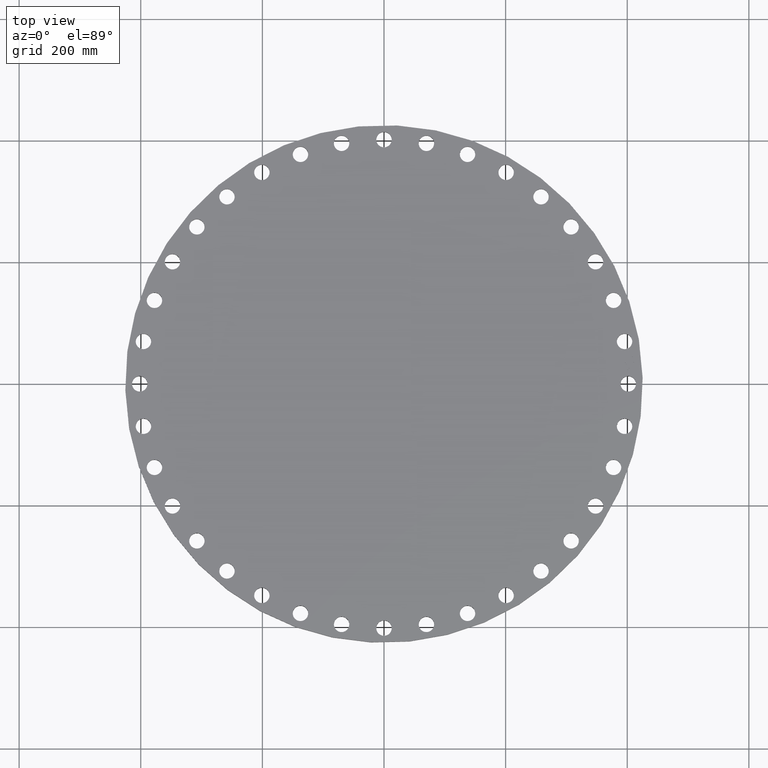
[diagram: clean part render]
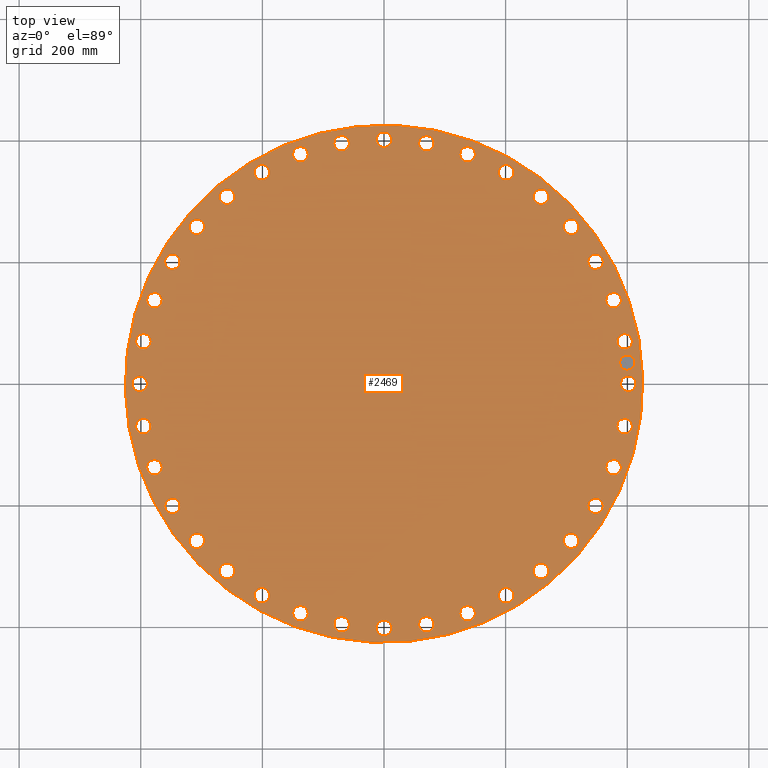
[diagram: same view with one face highlighted and labeled with its STEP entity id]
A machine part, top view. The second image highlights one B-rep face of the part: STEP entity #2469.
In plain terms, the highlighted planar face has unit normal (0, 0, -1).
Its self-contained STEP definition (entity closure, byte-faithful):
#65=AXIS2_PLACEMENT_3D('Circle Axis2P3D',#63,#64,$) ;
#82=AXIS2_PLACEMENT_3D('Circle Axis2P3D',#80,#81,$) ;
#115=AXIS2_PLACEMENT_3D('Circle Axis2P3D',#113,#114,$) ;
#139=AXIS2_PLACEMENT_3D('Circle Axis2P3D',#137,#138,$) ;
#814=AXIS2_PLACEMENT_3D('Circle Axis2P3D',#812,#813,$) ;
#826=AXIS2_PLACEMENT_3D('Circle Axis2P3D',#824,#825,$) ;
#857=AXIS2_PLACEMENT_3D('Circle Axis2P3D',#855,#856,$) ;
#869=AXIS2_PLACEMENT_3D('Circle Axis2P3D',#867,#868,$) ;
#900=AXIS2_PLACEMENT_3D('Circle Axis2P3D',#898,#899,$) ;
#912=AXIS2_PLACEMENT_3D('Circle Axis2P3D',#910,#911,$) ;
#943=AXIS2_PLACEMENT_3D('Circle Axis2P3D',#941,#942,$) ;
#955=AXIS2_PLACEMENT_3D('Circle Axis2P3D',#953,#954,$) ;
#986=AXIS2_PLACEMENT_3D('Circle Axis2P3D',#984,#985,$) ;
#998=AXIS2_PLACEMENT_3D('Circle Axis2P3D',#996,#997,$) ;
#1029=AXIS2_PLACEMENT_3D('Circle Axis2P3D',#1027,#1028,$) ;
#1041=AXIS2_PLACEMENT_3D('Circle Axis2P3D',#1039,#1040,$) ;
#1072=AXIS2_PLACEMENT_3D('Circle Axis2P3D',#1070,#1071,$) ;
#1084=AXIS2_PLACEMENT_3D('Circle Axis2P3D',#1082,#1083,$) ;
#1115=AXIS2_PLACEMENT_3D('Circle Axis2P3D',#1113,#1114,$) ;
#1127=AXIS2_PLACEMENT_3D('Circle Axis2P3D',#1125,#1126,$) ;
#1158=AXIS2_PLACEMENT_3D('Circle Axis2P3D',#1156,#1157,$) ;
#1170=AXIS2_PLACEMENT_3D('Circle Axis2P3D',#1168,#1169,$) ;
#1201=AXIS2_PLACEMENT_3D('Circle Axis2P3D',#1199,#1200,$) ;
#1213=AXIS2_PLACEMENT_3D('Circle Axis2P3D',#1211,#1212,$) ;
#1244=AXIS2_PLACEMENT_3D('Circle Axis2P3D',#1242,#1243,$) ;
#1256=AXIS2_PLACEMENT_3D('Circle Axis2P3D',#1254,#1255,$) ;
#1287=AXIS2_PLACEMENT_3D('Circle Axis2P3D',#1285,#1286,$) ;
#1299=AXIS2_PLACEMENT_3D('Circle Axis2P3D',#1297,#1298,$) ;
#1330=AXIS2_PLACEMENT_3D('Circle Axis2P3D',#1328,#1329,$) ;
#1342=AXIS2_PLACEMENT_3D('Circle Axis2P3D',#1340,#1341,$) ;
#1373=AXIS2_PLACEMENT_3D('Circle Axis2P3D',#1371,#1372,$) ;
#1385=AXIS2_PLACEMENT_3D('Circle Axis2P3D',#1383,#1384,$) ;
#1416=AXIS2_PLACEMENT_3D('Circle Axis2P3D',#1414,#1415,$) ;
#1428=AXIS2_PLACEMENT_3D('Circle Axis2P3D',#1426,#1427,$) ;
#1459=AXIS2_PLACEMENT_3D('Circle Axis2P3D',#1457,#1458,$) ;
#1471=AXIS2_PLACEMENT_3D('Circle Axis2P3D',#1469,#1470,$) ;
#1502=AXIS2_PLACEMENT_3D('Circle Axis2P3D',#1500,#1501,$) ;
#1514=AXIS2_PLACEMENT_3D('Circle Axis2P3D',#1512,#1513,$) ;
#1545=AXIS2_PLACEMENT_3D('Circle Axis2P3D',#1543,#1544,$) ;
#1557=AXIS2_PLACEMENT_3D('Circle Axis2P3D',#1555,#1556,$) ;
#1588=AXIS2_PLACEMENT_3D('Circle Axis2P3D',#1586,#1587,$) ;
#1600=AXIS2_PLACEMENT_3D('Circle Axis2P3D',#1598,#1599,$) ;
#1631=AXIS2_PLACEMENT_3D('Circle Axis2P3D',#1629,#1630,$) ;
#1643=AXIS2_PLACEMENT_3D('Circle Axis2P3D',#1641,#1642,$) ;
#1674=AXIS2_PLACEMENT_3D('Circle Axis2P3D',#1672,#1673,$) ;
#1686=AXIS2_PLACEMENT_3D('Circle Axis2P3D',#1684,#1685,$) ;
#1717=AXIS2_PLACEMENT_3D('Circle Axis2P3D',#1715,#1716,$) ;
#1729=AXIS2_PLACEMENT_3D('Circle Axis2P3D',#1727,#1728,$) ;
#1760=AXIS2_PLACEMENT_3D('Circle Axis2P3D',#1758,#1759,$) ;
#1772=AXIS2_PLACEMENT_3D('Circle Axis2P3D',#1770,#1771,$) ;
#1803=AXIS2_PLACEMENT_3D('Circle Axis2P3D',#1801,#1802,$) ;
#1815=AXIS2_PLACEMENT_3D('Circle Axis2P3D',#1813,#1814,$) ;
#1846=AXIS2_PLACEMENT_3D('Circle Axis2P3D',#1844,#1845,$) ;
#1858=AXIS2_PLACEMENT_3D('Circle Axis2P3D',#1856,#1857,$) ;
#1889=AXIS2_PLACEMENT_3D('Circle Axis2P3D',#1887,#1888,$) ;
#1901=AXIS2_PLACEMENT_3D('Circle Axis2P3D',#1899,#1900,$) ;
#1932=AXIS2_PLACEMENT_3D('Circle Axis2P3D',#1930,#1931,$) ;
#1944=AXIS2_PLACEMENT_3D('Circle Axis2P3D',#1942,#1943,$) ;
#1975=AXIS2_PLACEMENT_3D('Circle Axis2P3D',#1973,#1974,$) ;
#1987=AXIS2_PLACEMENT_3D('Circle Axis2P3D',#1985,#1986,$) ;
#2018=AXIS2_PLACEMENT_3D('Circle Axis2P3D',#2016,#2017,$) ;
#2030=AXIS2_PLACEMENT_3D('Circle Axis2P3D',#2028,#2029,$) ;
#2061=AXIS2_PLACEMENT_3D('Circle Axis2P3D',#2059,#2060,$) ;
#2073=AXIS2_PLACEMENT_3D('Circle Axis2P3D',#2071,#2072,$) ;
#2104=AXIS2_PLACEMENT_3D('Circle Axis2P3D',#2102,#2103,$) ;
#2116=AXIS2_PLACEMENT_3D('Circle Axis2P3D',#2114,#2115,$) ;
#2147=AXIS2_PLACEMENT_3D('Circle Axis2P3D',#2145,#2146,$) ;
#2159=AXIS2_PLACEMENT_3D('Circle Axis2P3D',#2157,#2158,$) ;
#2190=AXIS2_PLACEMENT_3D('Circle Axis2P3D',#2188,#2189,$) ;
#2202=AXIS2_PLACEMENT_3D('Circle Axis2P3D',#2200,#2201,$) ;
#2233=AXIS2_PLACEMENT_3D('Circle Axis2P3D',#2231,#2232,$) ;
#2245=AXIS2_PLACEMENT_3D('Circle Axis2P3D',#2243,#2244,$) ;
#2276=AXIS2_PLACEMENT_3D('Circle Axis2P3D',#2274,#2275,$) ;
#2288=AXIS2_PLACEMENT_3D('Circle Axis2P3D',#2286,#2287,$) ;
#2301=AXIS2_PLACEMENT_3D('Plane Axis2P3D',#2298,#2299,#2300) ;
#2453=AXIS2_PLACEMENT_3D('Circle Axis2P3D',#2451,#2452,$) ;
#2462=AXIS2_PLACEMENT_3D('Circle Axis2P3D',#2460,#2461,$) ;
#46=CARTESIAN_POINT('Vertex',(15.3762087191,0.239712769303,1.25000000001)) ;
#60=CARTESIAN_POINT('Vertex',(16.253791281,-0.239712769303,1.25000000001)) ;
#63=CARTESIAN_POINT('Axis2P3D Location',(15.8150000001,0.,1.25000000001)) ;
#80=CARTESIAN_POINT('Axis2P3D Location',(15.8150000001,0.,1.25000000001)) ;
#110=CARTESIAN_POINT('Vertex',(8.03037777165,14.6995079117,1.25000000001)) ;
#113=CARTESIAN_POINT('Axis2P3D Location',(0.,0.,1.25000000001)) ;
#117=CARTESIAN_POINT('Vertex',(-8.03037777165,-14.6995079117,1.25000000001)) ;
#137=CARTESIAN_POINT('Axis2P3D Location',(0.,0.,1.25000000001)) ;
#802=CARTESIAN_POINT('Vertex',(-15.1842352441,2.4339796298,1.25000000001)) ;
#809=CARTESIAN_POINT('Vertex',(-15.9652339838,3.05851222983,1.25000000001)) ;
#812=CARTESIAN_POINT('Axis2P3D Location',(-15.574734614,2.74624592981,1.25000000001)) ;
#824=CARTESIAN_POINT('Axis2P3D Location',(-15.574734614,2.74624592981,1.25000000001)) ;
#845=CARTESIAN_POINT('Vertex',(14.5308964647,-5.0337167895,1.25000000001)) ;
#852=CARTESIAN_POINT('Vertex',(15.1915811308,-5.78438034394,1.25000000001)) ;
#855=CARTESIAN_POINT('Axis2P3D Location',(14.8612387978,-5.40904856672,1.25000000001)) ;
#867=CARTESIAN_POINT('Axis2P3D Location',(14.8612387978,-5.40904856672,1.25000000001)) ;
#888=CARTESIAN_POINT('Vertex',(-14.5308964647,5.0337167895,1.25000000001)) ;
#895=CARTESIAN_POINT('Vertex',(-15.1915811308,5.78438034394,1.25000000001)) ;
#898=CARTESIAN_POINT('Axis2P3D Location',(-14.8612387978,5.40904856672,1.25000000001)) ;
#910=CARTESIAN_POINT('Axis2P3D Location',(-14.8612387978,5.40904856672,1.25000000001)) ;
#931=CARTESIAN_POINT('Vertex',(13.4360437493,-7.48050701173,1.25000000001)) ;
#938=CARTESIAN_POINT('Vertex',(13.9563397725,-8.33449298833,1.25000000001)) ;
#941=CARTESIAN_POINT('Axis2P3D Location',(13.6961917609,-7.90750000003,1.25000000001)) ;
#953=CARTESIAN_POINT('Axis2P3D Location',(13.6961917609,-7.90750000003,1.25000000001)) ;
#974=CARTESIAN_POINT('Vertex',(-13.4360437493,7.48050701173,1.25000000001)) ;
#981=CARTESIAN_POINT('Vertex',(-13.9563397725,8.33449298833,1.25000000001)) ;
#984=CARTESIAN_POINT('Axis2P3D Location',(-13.6961917609,7.90750000003,1.25000000001)) ;
#996=CARTESIAN_POINT('Axis2P3D Location',(-13.6961917609,7.90750000003,1.25000000001)) ;
#1017=CARTESIAN_POINT('Vertex',(11.9329436435,-9.70000581373,1.25000000001)) ;
#1024=CARTESIAN_POINT('Vertex',(12.2970420924,-10.6313662807,1.25000000001)) ;
#1027=CARTESIAN_POINT('Axis2P3D Location',(12.114992868,-10.1656860472,1.25000000001)) ;
#1039=CARTESIAN_POINT('Axis2P3D Location',(12.114992868,-10.1656860472,1.25000000001)) ;
#1060=CARTESIAN_POINT('Vertex',(-11.9329436435,9.70000581373,1.25000000001)) ;
#1067=CARTESIAN_POINT('Vertex',(-12.2970420924,10.6313662807,1.25000000001)) ;
#1070=CARTESIAN_POINT('Axis2P3D Location',(-12.114992868,10.1656860472,1.25000000001)) ;
#1082=CARTESIAN_POINT('Axis2P3D Location',(-12.114992868,10.1656860472,1.25000000001)) ;
#1103=CARTESIAN_POINT('Vertex',(10.0672670835,-11.6247748475,1.25000000001)) ;
#1110=CARTESIAN_POINT('Vertex',(10.264105011,-12.6052108884,1.25000000001)) ;
#1113=CARTESIAN_POINT('Axis2P3D Location',(10.1656860472,-12.114992868,1.25000000001)) ;
#1125=CARTESIAN_POINT('Axis2P3D Location',(10.1656860472,-12.114992868,1.25000000001)) ;
#1146=CARTESIAN_POINT('Vertex',(-10.0672670835,11.6247748475,1.25000000001)) ;
#1153=CARTESIAN_POINT('Vertex',(-10.264105011,12.6052108884,1.25000000001)) ;
#1156=CARTESIAN_POINT('Axis2P3D Location',(-10.1656860472,12.114992868,1.25000000001)) ;
#1168=CARTESIAN_POINT('Axis2P3D Location',(-10.1656860472,12.114992868,1.25000000001)) ;
#1189=CARTESIAN_POINT('Vertex',(7.89570170739,-13.19633098,1.25000000001)) ;
#1196=CARTESIAN_POINT('Vertex',(7.91929829268,-14.1960525418,1.25000000001)) ;
#1199=CARTESIAN_POINT('Axis2P3D Location',(7.90750000003,-13.6961917609,1.25000000001)) ;
#1211=CARTESIAN_POINT('Axis2P3D Location',(7.90750000003,-13.6961917609,1.25000000001)) ;
#1232=CARTESIAN_POINT('Vertex',(-7.89570170739,13.19633098,1.25000000001)) ;
#1239=CARTESIAN_POINT('Vertex',(-7.91929829268,14.1960525418,1.25000000001)) ;
#1242=CARTESIAN_POINT('Axis2P3D Location',(-7.90750000003,13.6961917609,1.25000000001)) ;
#1254=CARTESIAN_POINT('Axis2P3D Location',(-7.90750000003,13.6961917609,1.25000000001)) ;
#1275=CARTESIAN_POINT('Vertex',(5.48422943034,-14.3669232733,1.25000000001)) ;
#1282=CARTESIAN_POINT('Vertex',(5.33386770309,-15.3555543223,1.25000000001)) ;
#1285=CARTESIAN_POINT('Axis2P3D Location',(5.40904856672,-14.8612387978,1.25000000001)) ;
#1297=CARTESIAN_POINT('Axis2P3D Location',(5.40904856672,-14.8612387978,1.25000000001)) ;
#1318=CARTESIAN_POINT('Vertex',(-5.48422943034,14.3669232733,1.25000000001)) ;
#1325=CARTESIAN_POINT('Vertex',(-5.33386770309,15.3555543223,1.25000000001)) ;
#1328=CARTESIAN_POINT('Axis2P3D Location',(-5.40904856672,14.8612387978,1.25000000001)) ;
#1340=CARTESIAN_POINT('Axis2P3D Location',(-5.40904856672,14.8612387978,1.25000000001)) ;
#1361=CARTESIAN_POINT('Vertex',(2.90612161721,-15.100983873,1.25000000001)) ;
#1368=CARTESIAN_POINT('Vertex',(2.58637024242,-16.0484853549,1.25000000001)) ;
#1371=CARTESIAN_POINT('Axis2P3D Location',(2.74624592981,-15.574734614,1.25000000001)) ;
#1383=CARTESIAN_POINT('Axis2P3D Location',(2.74624592981,-15.574734614,1.25000000001)) ;
#1404=CARTESIAN_POINT('Vertex',(-2.90612161721,15.100983873,1.25000000001)) ;
#1411=CARTESIAN_POINT('Vertex',(-2.58637024242,16.0484853549,1.25000000001)) ;
#1414=CARTESIAN_POINT('Axis2P3D Location',(-2.74624592981,15.574734614,1.25000000001)) ;
#1426=CARTESIAN_POINT('Axis2P3D Location',(-2.74624592981,15.574734614,1.25000000001)) ;
#1447=CARTESIAN_POINT('Vertex',(0.239712769303,-15.3762087191,1.25000000001)) ;
#1454=CARTESIAN_POINT('Vertex',(-0.239712769303,-16.253791281,1.25000000001)) ;
#1457=CARTESIAN_POINT('Axis2P3D Location',(-1.26954041998E-015,-15.8150000001,1.25000000001)) ;
#1469=CARTESIAN_POINT('Axis2P3D Location',(-1.26954041998E-015,-15.8150000001,1.25000000001)) ;
#1490=CARTESIAN_POINT('Vertex',(-0.239712769303,15.3762087191,1.25000000001)) ;
#1497=CARTESIAN_POINT('Vertex',(0.239712769303,16.253791281,1.25000000001)) ;
#1500=CARTESIAN_POINT('Axis2P3D Location',(-6.67238492879E-016,15.8150000001,1.25000000001)) ;
#1512=CARTESIAN_POINT('Axis2P3D Location',(-6.67238492879E-016,15.8150000001,1.25000000001)) ;
#1533=CARTESIAN_POINT('Vertex',(-2.4339796298,-15.1842352441,1.25000000001)) ;
#1540=CARTESIAN_POINT('Vertex',(-3.05851222983,-15.9652339838,1.25000000001)) ;
#1543=CARTESIAN_POINT('Axis2P3D Location',(-2.74624592981,-15.574734614,1.25000000001)) ;
#1555=CARTESIAN_POINT('Axis2P3D Location',(-2.74624592981,-15.574734614,1.25000000001)) ;
#1576=CARTESIAN_POINT('Vertex',(2.4339796298,15.1842352441,1.25000000001)) ;
#1583=CARTESIAN_POINT('Vertex',(3.05851222983,15.9652339838,1.25000000001)) ;
#1586=CARTESIAN_POINT('Axis2P3D Location',(2.74624592981,15.574734614,1.25000000001)) ;
#1598=CARTESIAN_POINT('Axis2P3D Location',(2.74624592981,15.574734614,1.25000000001)) ;
#1619=CARTESIAN_POINT('Vertex',(-5.0337167895,-14.5308964647,1.25000000001)) ;
#1626=CARTESIAN_POINT('Vertex',(-5.78438034394,-15.1915811308,1.25000000001)) ;
#1629=CARTESIAN_POINT('Axis2P3D Location',(-5.40904856672,-14.8612387978,1.25000000001)) ;
#1641=CARTESIAN_POINT('Axis2P3D Location',(-5.40904856672,-14.8612387978,1.25000000001)) ;
#1662=CARTESIAN_POINT('Vertex',(5.0337167895,14.5308964647,1.25000000001)) ;
#1669=CARTESIAN_POINT('Vertex',(5.78438034394,15.1915811308,1.25000000001)) ;
#1672=CARTESIAN_POINT('Axis2P3D Location',(5.40904856672,14.8612387978,1.25000000001)) ;
#1684=CARTESIAN_POINT('Axis2P3D Location',(5.40904856672,14.8612387978,1.25000000001)) ;
#1705=CARTESIAN_POINT('Vertex',(-7.48050701173,-13.4360437493,1.25000000001)) ;
#1712=CARTESIAN_POINT('Vertex',(-8.33449298833,-13.9563397725,1.25000000001)) ;
#1715=CARTESIAN_POINT('Axis2P3D Location',(-7.90750000003,-13.6961917609,1.25000000001)) ;
#1727=CARTESIAN_POINT('Axis2P3D Location',(-7.90750000003,-13.6961917609,1.25000000001)) ;
#1748=CARTESIAN_POINT('Vertex',(7.48050701173,13.4360437493,1.25000000001)) ;
#1755=CARTESIAN_POINT('Vertex',(8.33449298833,13.9563397725,1.25000000001)) ;
#1758=CARTESIAN_POINT('Axis2P3D Location',(7.90750000003,13.6961917609,1.25000000001)) ;
#1770=CARTESIAN_POINT('Axis2P3D Location',(7.90750000003,13.6961917609,1.25000000001)) ;
#1791=CARTESIAN_POINT('Vertex',(-9.70000581373,-11.9329436435,1.25000000001)) ;
#1798=CARTESIAN_POINT('Vertex',(-10.6313662807,-12.2970420924,1.25000000001)) ;
#1801=CARTESIAN_POINT('Axis2P3D Location',(-10.1656860472,-12.114992868,1.25000000001)) ;
#1813=CARTESIAN_POINT('Axis2P3D Location',(-10.1656860472,-12.114992868,1.25000000001)) ;
#1834=CARTESIAN_POINT('Vertex',(9.70000581373,11.9329436435,1.25000000001)) ;
#1841=CARTESIAN_POINT('Vertex',(10.6313662807,12.2970420924,1.25000000001)) ;
#1844=CARTESIAN_POINT('Axis2P3D Location',(10.1656860472,12.114992868,1.25000000001)) ;
#1856=CARTESIAN_POINT('Axis2P3D Location',(10.1656860472,12.114992868,1.25000000001)) ;
#1877=CARTESIAN_POINT('Vertex',(-11.6247748475,-10.0672670835,1.25000000001)) ;
#1884=CARTESIAN_POINT('Vertex',(-12.6052108884,-10.264105011,1.25000000001)) ;
#1887=CARTESIAN_POINT('Axis2P3D Location',(-12.114992868,-10.1656860472,1.25000000001)) ;
#1899=CARTESIAN_POINT('Axis2P3D Location',(-12.114992868,-10.1656860472,1.25000000001)) ;
#1920=CARTESIAN_POINT('Vertex',(11.6247748475,10.0672670835,1.25000000001)) ;
#1927=CARTESIAN_POINT('Vertex',(12.6052108884,10.264105011,1.25000000001)) ;
#1930=CARTESIAN_POINT('Axis2P3D Location',(12.114992868,10.1656860472,1.25000000001)) ;
#1942=CARTESIAN_POINT('Axis2P3D Location',(12.114992868,10.1656860472,1.25000000001)) ;
#1963=CARTESIAN_POINT('Vertex',(-13.19633098,-7.89570170739,1.25000000001)) ;
#1970=CARTESIAN_POINT('Vertex',(-14.1960525418,-7.91929829268,1.25000000001)) ;
#1973=CARTESIAN_POINT('Axis2P3D Location',(-13.6961917609,-7.90750000003,1.25000000001)) ;
#1985=CARTESIAN_POINT('Axis2P3D Location',(-13.6961917609,-7.90750000003,1.25000000001)) ;
#2006=CARTESIAN_POINT('Vertex',(13.19633098,7.89570170739,1.25000000001)) ;
#2013=CARTESIAN_POINT('Vertex',(14.1960525418,7.91929829268,1.25000000001)) ;
#2016=CARTESIAN_POINT('Axis2P3D Location',(13.6961917609,7.90750000003,1.25000000001)) ;
#2028=CARTESIAN_POINT('Axis2P3D Location',(13.6961917609,7.90750000003,1.25000000001)) ;
#2049=CARTESIAN_POINT('Vertex',(-14.3669232733,-5.48422943034,1.25000000001)) ;
#2056=CARTESIAN_POINT('Vertex',(-15.3555543223,-5.33386770309,1.25000000001)) ;
#2059=CARTESIAN_POINT('Axis2P3D Location',(-14.8612387978,-5.40904856672,1.25000000001)) ;
#2071=CARTESIAN_POINT('Axis2P3D Location',(-14.8612387978,-5.40904856672,1.25000000001)) ;
#2092=CARTESIAN_POINT('Vertex',(14.3669232733,5.48422943034,1.25000000001)) ;
#2099=CARTESIAN_POINT('Vertex',(15.3555543223,5.33386770309,1.25000000001)) ;
#2102=CARTESIAN_POINT('Axis2P3D Location',(14.8612387978,5.40904856672,1.25000000001)) ;
#2114=CARTESIAN_POINT('Axis2P3D Location',(14.8612387978,5.40904856672,1.25000000001)) ;
#2135=CARTESIAN_POINT('Vertex',(-15.100983873,-2.90612161721,1.25000000001)) ;
#2142=CARTESIAN_POINT('Vertex',(-16.0484853549,-2.58637024242,1.25000000001)) ;
#2145=CARTESIAN_POINT('Axis2P3D Location',(-15.574734614,-2.74624592981,1.25000000001)) ;
#2157=CARTESIAN_POINT('Axis2P3D Location',(-15.574734614,-2.74624592981,1.25000000001)) ;
#2178=CARTESIAN_POINT('Vertex',(15.100983873,2.90612161721,1.25000000001)) ;
#2185=CARTESIAN_POINT('Vertex',(16.0484853549,2.58637024242,1.25000000001)) ;
#2188=CARTESIAN_POINT('Axis2P3D Location',(15.574734614,2.74624592981,1.25000000001)) ;
#2200=CARTESIAN_POINT('Axis2P3D Location',(15.574734614,2.74624592981,1.25000000001)) ;
#2221=CARTESIAN_POINT('Vertex',(-15.3762087191,-0.239712769303,1.25000000001)) ;
#2228=CARTESIAN_POINT('Vertex',(-16.253791281,0.239712769303,1.25000000001)) ;
#2231=CARTESIAN_POINT('Axis2P3D Location',(-15.8150000001,-1.93677891286E-015,1.25000000001)) ;
#2243=CARTESIAN_POINT('Axis2P3D Location',(-15.8150000001,-1.93677891286E-015,1.25000000001)) ;
#2264=CARTESIAN_POINT('Vertex',(15.1842352441,-2.4339796298,1.25000000001)) ;
#2271=CARTESIAN_POINT('Vertex',(15.9652339838,-3.05851222983,1.25000000001)) ;
#2274=CARTESIAN_POINT('Axis2P3D Location',(15.574734614,-2.74624592981,1.25000000001)) ;
#2286=CARTESIAN_POINT('Axis2P3D Location',(15.574734614,-2.74624592981,1.25000000001)) ;
#2298=CARTESIAN_POINT('Axis2P3D Location',(0.,16.7500000001,1.25000000001)) ;
#2451=CARTESIAN_POINT('Axis2P3D Location',(15.7548191504,1.37836807156,1.25000000001)) ;
#2455=CARTESIAN_POINT('Vertex',(15.711241279,1.87646542061,1.25000000001)) ;
#2457=CARTESIAN_POINT('Vertex',(15.7983970218,0.880270722512,1.25000000001)) ;
#2460=CARTESIAN_POINT('Axis2P3D Location',(15.7548191504,1.37836807156,1.25000000001)) ;
#64=DIRECTION('Axis2P3D Direction',(0.,-0.,-0.0393700787402)) ;
#81=DIRECTION('Axis2P3D Direction',(0.,-0.,-0.0393700787402)) ;
#114=DIRECTION('Axis2P3D Direction',(0.,0.,-0.0393700787402)) ;
#138=DIRECTION('Axis2P3D Direction',(0.,0.,-0.0393700787402)) ;
#813=DIRECTION('Axis2P3D Direction',(0.,0.,-0.0393700787402)) ;
#825=DIRECTION('Axis2P3D Direction',(0.,0.,-0.0393700787402)) ;
#856=DIRECTION('Axis2P3D Direction',(0.,-0.,-0.0393700787402)) ;
#868=DIRECTION('Axis2P3D Direction',(0.,-0.,-0.0393700787402)) ;
#899=DIRECTION('Axis2P3D Direction',(0.,0.,-0.0393700787402)) ;
#911=DIRECTION('Axis2P3D Direction',(0.,0.,-0.0393700787402)) ;
#942=DIRECTION('Axis2P3D Direction',(0.,-0.,-0.0393700787402)) ;
#954=DIRECTION('Axis2P3D Direction',(0.,-0.,-0.0393700787402)) ;
#985=DIRECTION('Axis2P3D Direction',(0.,0.,-0.0393700787402)) ;
#997=DIRECTION('Axis2P3D Direction',(0.,0.,-0.0393700787402)) ;
#1028=DIRECTION('Axis2P3D Direction',(0.,-0.,-0.0393700787402)) ;
#1040=DIRECTION('Axis2P3D Direction',(0.,-0.,-0.0393700787402)) ;
#1071=DIRECTION('Axis2P3D Direction',(0.,0.,-0.0393700787402)) ;
#1083=DIRECTION('Axis2P3D Direction',(0.,0.,-0.0393700787402)) ;
#1114=DIRECTION('Axis2P3D Direction',(0.,-0.,-0.0393700787402)) ;
#1126=DIRECTION('Axis2P3D Direction',(0.,-0.,-0.0393700787402)) ;
#1157=DIRECTION('Axis2P3D Direction',(0.,0.,-0.0393700787402)) ;
#1169=DIRECTION('Axis2P3D Direction',(0.,0.,-0.0393700787402)) ;
#1200=DIRECTION('Axis2P3D Direction',(0.,-0.,-0.0393700787402)) ;
#1212=DIRECTION('Axis2P3D Direction',(0.,-0.,-0.0393700787402)) ;
#1243=DIRECTION('Axis2P3D Direction',(0.,0.,-0.0393700787402)) ;
#1255=DIRECTION('Axis2P3D Direction',(0.,0.,-0.0393700787402)) ;
#1286=DIRECTION('Axis2P3D Direction',(0.,-0.,-0.0393700787402)) ;
#1298=DIRECTION('Axis2P3D Direction',(0.,-0.,-0.0393700787402)) ;
#1329=DIRECTION('Axis2P3D Direction',(0.,0.,-0.0393700787402)) ;
#1341=DIRECTION('Axis2P3D Direction',(0.,0.,-0.0393700787402)) ;
#1372=DIRECTION('Axis2P3D Direction',(0.,-0.,-0.0393700787402)) ;
#1384=DIRECTION('Axis2P3D Direction',(0.,-0.,-0.0393700787402)) ;
#1415=DIRECTION('Axis2P3D Direction',(0.,0.,-0.0393700787402)) ;
#1427=DIRECTION('Axis2P3D Direction',(0.,0.,-0.0393700787402)) ;
#1458=DIRECTION('Axis2P3D Direction',(0.,-0.,-0.0393700787402)) ;
#1470=DIRECTION('Axis2P3D Direction',(0.,-0.,-0.0393700787402)) ;
#1501=DIRECTION('Axis2P3D Direction',(0.,0.,-0.0393700787402)) ;
#1513=DIRECTION('Axis2P3D Direction',(0.,0.,-0.0393700787402)) ;
#1544=DIRECTION('Axis2P3D Direction',(-0.,0.,-0.0393700787402)) ;
#1556=DIRECTION('Axis2P3D Direction',(-0.,0.,-0.0393700787402)) ;
#1587=DIRECTION('Axis2P3D Direction',(0.,0.,-0.0393700787402)) ;
#1599=DIRECTION('Axis2P3D Direction',(0.,0.,-0.0393700787402)) ;
#1630=DIRECTION('Axis2P3D Direction',(-0.,0.,-0.0393700787402)) ;
#1642=DIRECTION('Axis2P3D Direction',(-0.,0.,-0.0393700787402)) ;
#1673=DIRECTION('Axis2P3D Direction',(0.,0.,-0.0393700787402)) ;
#1685=DIRECTION('Axis2P3D Direction',(0.,0.,-0.0393700787402)) ;
#1716=DIRECTION('Axis2P3D Direction',(-0.,0.,-0.0393700787402)) ;
#1728=DIRECTION('Axis2P3D Direction',(-0.,0.,-0.0393700787402)) ;
#1759=DIRECTION('Axis2P3D Direction',(0.,0.,-0.0393700787402)) ;
#1771=DIRECTION('Axis2P3D Direction',(0.,0.,-0.0393700787402)) ;
#1802=DIRECTION('Axis2P3D Direction',(-0.,0.,-0.0393700787402)) ;
#1814=DIRECTION('Axis2P3D Direction',(-0.,0.,-0.0393700787402)) ;
#1845=DIRECTION('Axis2P3D Direction',(0.,0.,-0.0393700787402)) ;
#1857=DIRECTION('Axis2P3D Direction',(0.,0.,-0.0393700787402)) ;
#1888=DIRECTION('Axis2P3D Direction',(-0.,0.,-0.0393700787402)) ;
#1900=DIRECTION('Axis2P3D Direction',(-0.,0.,-0.0393700787402)) ;
#1931=DIRECTION('Axis2P3D Direction',(0.,0.,-0.0393700787402)) ;
#1943=DIRECTION('Axis2P3D Direction',(0.,0.,-0.0393700787402)) ;
#1974=DIRECTION('Axis2P3D Direction',(-0.,0.,-0.0393700787402)) ;
#1986=DIRECTION('Axis2P3D Direction',(-0.,0.,-0.0393700787402)) ;
#2017=DIRECTION('Axis2P3D Direction',(0.,0.,-0.0393700787402)) ;
#2029=DIRECTION('Axis2P3D Direction',(0.,0.,-0.0393700787402)) ;
#2060=DIRECTION('Axis2P3D Direction',(-0.,0.,-0.0393700787402)) ;
#2072=DIRECTION('Axis2P3D Direction',(-0.,0.,-0.0393700787402)) ;
#2103=DIRECTION('Axis2P3D Direction',(0.,0.,-0.0393700787402)) ;
#2115=DIRECTION('Axis2P3D Direction',(0.,0.,-0.0393700787402)) ;
#2146=DIRECTION('Axis2P3D Direction',(-0.,0.,-0.0393700787402)) ;
#2158=DIRECTION('Axis2P3D Direction',(-0.,0.,-0.0393700787402)) ;
#2189=DIRECTION('Axis2P3D Direction',(0.,0.,-0.0393700787402)) ;
#2201=DIRECTION('Axis2P3D Direction',(0.,0.,-0.0393700787402)) ;
#2232=DIRECTION('Axis2P3D Direction',(-0.,0.,-0.0393700787402)) ;
#2244=DIRECTION('Axis2P3D Direction',(-0.,0.,-0.0393700787402)) ;
#2275=DIRECTION('Axis2P3D Direction',(0.,-0.,-0.0393700787402)) ;
#2287=DIRECTION('Axis2P3D Direction',(0.,-0.,-0.0393700787402)) ;
#2299=DIRECTION('Axis2P3D Direction',(0.,0.,-0.0393700787402)) ;
#2300=DIRECTION('Axis2P3D XDirection',(0.0393700787402,0.,0.)) ;
#2452=DIRECTION('Axis2P3D Direction',(0.,0.,-0.0393700787402)) ;
#2461=DIRECTION('Axis2P3D Direction',(0.,0.,-0.0393700787402)) ;
#2304=ORIENTED_EDGE('',*,*,#119,.F.) ;
#2305=ORIENTED_EDGE('',*,*,#141,.F.) ;
#2308=ORIENTED_EDGE('',*,*,#67,.T.) ;
#2309=ORIENTED_EDGE('',*,*,#84,.T.) ;
#2312=ORIENTED_EDGE('',*,*,#2290,.T.) ;
#2313=ORIENTED_EDGE('',*,*,#2278,.T.) ;
#2316=ORIENTED_EDGE('',*,*,#871,.T.) ;
#2317=ORIENTED_EDGE('',*,*,#859,.T.) ;
#2320=ORIENTED_EDGE('',*,*,#957,.T.) ;
#2321=ORIENTED_EDGE('',*,*,#945,.T.) ;
#2324=ORIENTED_EDGE('',*,*,#1043,.T.) ;
#2325=ORIENTED_EDGE('',*,*,#1031,.T.) ;
#2328=ORIENTED_EDGE('',*,*,#1129,.T.) ;
#2329=ORIENTED_EDGE('',*,*,#1117,.T.) ;
#2332=ORIENTED_EDGE('',*,*,#1215,.T.) ;
#2333=ORIENTED_EDGE('',*,*,#1203,.T.) ;
#2336=ORIENTED_EDGE('',*,*,#1301,.T.) ;
#2337=ORIENTED_EDGE('',*,*,#1289,.T.) ;
#2340=ORIENTED_EDGE('',*,*,#1387,.T.) ;
#2341=ORIENTED_EDGE('',*,*,#1375,.T.) ;
#2344=ORIENTED_EDGE('',*,*,#1473,.T.) ;
#2345=ORIENTED_EDGE('',*,*,#1461,.T.) ;
#2348=ORIENTED_EDGE('',*,*,#1559,.T.) ;
#2349=ORIENTED_EDGE('',*,*,#1547,.T.) ;
#2352=ORIENTED_EDGE('',*,*,#1645,.T.) ;
#2353=ORIENTED_EDGE('',*,*,#1633,.T.) ;
#2356=ORIENTED_EDGE('',*,*,#1731,.T.) ;
#2357=ORIENTED_EDGE('',*,*,#1719,.T.) ;
#2360=ORIENTED_EDGE('',*,*,#1817,.T.) ;
#2361=ORIENTED_EDGE('',*,*,#1805,.T.) ;
#2364=ORIENTED_EDGE('',*,*,#1903,.T.) ;
#2365=ORIENTED_EDGE('',*,*,#1891,.T.) ;
#2368=ORIENTED_EDGE('',*,*,#1989,.T.) ;
#2369=ORIENTED_EDGE('',*,*,#1977,.T.) ;
#2372=ORIENTED_EDGE('',*,*,#2075,.T.) ;
#2373=ORIENTED_EDGE('',*,*,#2063,.T.) ;
#2376=ORIENTED_EDGE('',*,*,#2161,.T.) ;
#2377=ORIENTED_EDGE('',*,*,#2149,.T.) ;
#2380=ORIENTED_EDGE('',*,*,#2247,.T.) ;
#2381=ORIENTED_EDGE('',*,*,#2235,.T.) ;
#2384=ORIENTED_EDGE('',*,*,#828,.T.) ;
#2385=ORIENTED_EDGE('',*,*,#816,.T.) ;
#2388=ORIENTED_EDGE('',*,*,#914,.T.) ;
#2389=ORIENTED_EDGE('',*,*,#902,.T.) ;
#2392=ORIENTED_EDGE('',*,*,#1000,.T.) ;
#2393=ORIENTED_EDGE('',*,*,#988,.T.) ;
#2396=ORIENTED_EDGE('',*,*,#1086,.T.) ;
#2397=ORIENTED_EDGE('',*,*,#1074,.T.) ;
#2400=ORIENTED_EDGE('',*,*,#1172,.T.) ;
#2401=ORIENTED_EDGE('',*,*,#1160,.T.) ;
#2404=ORIENTED_EDGE('',*,*,#1258,.T.) ;
#2405=ORIENTED_EDGE('',*,*,#1246,.T.) ;
#2408=ORIENTED_EDGE('',*,*,#1344,.T.) ;
#2409=ORIENTED_EDGE('',*,*,#1332,.T.) ;
#2412=ORIENTED_EDGE('',*,*,#1430,.T.) ;
#2413=ORIENTED_EDGE('',*,*,#1418,.T.) ;
#2416=ORIENTED_EDGE('',*,*,#1516,.T.) ;
#2417=ORIENTED_EDGE('',*,*,#1504,.T.) ;
#2420=ORIENTED_EDGE('',*,*,#1602,.T.) ;
#2421=ORIENTED_EDGE('',*,*,#1590,.T.) ;
#2424=ORIENTED_EDGE('',*,*,#1688,.T.) ;
#2425=ORIENTED_EDGE('',*,*,#1676,.T.) ;
#2428=ORIENTED_EDGE('',*,*,#1774,.T.) ;
#2429=ORIENTED_EDGE('',*,*,#1762,.T.) ;
#2432=ORIENTED_EDGE('',*,*,#1860,.T.) ;
#2433=ORIENTED_EDGE('',*,*,#1848,.T.) ;
#2436=ORIENTED_EDGE('',*,*,#1946,.T.) ;
#2437=ORIENTED_EDGE('',*,*,#1934,.T.) ;
#2440=ORIENTED_EDGE('',*,*,#2032,.T.) ;
#2441=ORIENTED_EDGE('',*,*,#2020,.T.) ;
#2444=ORIENTED_EDGE('',*,*,#2118,.T.) ;
#2445=ORIENTED_EDGE('',*,*,#2106,.T.) ;
#2448=ORIENTED_EDGE('',*,*,#2204,.T.) ;
#2449=ORIENTED_EDGE('',*,*,#2192,.T.) ;
#2466=ORIENTED_EDGE('',*,*,#2459,.T.) ;
#2467=ORIENTED_EDGE('',*,*,#2464,.T.) ;
#2310=FACE_BOUND('',#2307,.T.) ;
#2314=FACE_BOUND('',#2311,.T.) ;
#2318=FACE_BOUND('',#2315,.T.) ;
#2322=FACE_BOUND('',#2319,.T.) ;
#2326=FACE_BOUND('',#2323,.T.) ;
#2330=FACE_BOUND('',#2327,.T.) ;
#2334=FACE_BOUND('',#2331,.T.) ;
#2338=FACE_BOUND('',#2335,.T.) ;
#2342=FACE_BOUND('',#2339,.T.) ;
#2346=FACE_BOUND('',#2343,.T.) ;
#2350=FACE_BOUND('',#2347,.T.) ;
#2354=FACE_BOUND('',#2351,.T.) ;
#2358=FACE_BOUND('',#2355,.T.) ;
#2362=FACE_BOUND('',#2359,.T.) ;
#2366=FACE_BOUND('',#2363,.T.) ;
#2370=FACE_BOUND('',#2367,.T.) ;
#2374=FACE_BOUND('',#2371,.T.) ;
#2378=FACE_BOUND('',#2375,.T.) ;
#2382=FACE_BOUND('',#2379,.T.) ;
#2386=FACE_BOUND('',#2383,.T.) ;
#2390=FACE_BOUND('',#2387,.T.) ;
#2394=FACE_BOUND('',#2391,.T.) ;
#2398=FACE_BOUND('',#2395,.T.) ;
#2402=FACE_BOUND('',#2399,.T.) ;
#2406=FACE_BOUND('',#2403,.T.) ;
#2410=FACE_BOUND('',#2407,.T.) ;
#2414=FACE_BOUND('',#2411,.T.) ;
#2418=FACE_BOUND('',#2415,.T.) ;
#2422=FACE_BOUND('',#2419,.T.) ;
#2426=FACE_BOUND('',#2423,.T.) ;
#2430=FACE_BOUND('',#2427,.T.) ;
#2434=FACE_BOUND('',#2431,.T.) ;
#2438=FACE_BOUND('',#2435,.T.) ;
#2442=FACE_BOUND('',#2439,.T.) ;
#2446=FACE_BOUND('',#2443,.T.) ;
#2450=FACE_BOUND('',#2447,.T.) ;
#2468=FACE_BOUND('',#2465,.T.) ;
#2469=ADVANCED_FACE('PartBody',(#2306,#2310,#2314,#2318,#2322,#2326,#2330,#2334,#2338,#2342,#2346,#2350,#2354,#2358,#2362,#2366,#2370,#2374,#2378,#2382,#2386,#2390,#2394,#2398,#2402,#2406,#2410,#2414,#2418,#2422,#2426,#2430,#2434,#2438,#2442,#2446,#2450,#2468),#2302,.F.) ;
#66=CIRCLE('generated circle',#65,0.500000000002) ;
#83=CIRCLE('generated circle',#82,0.500000000002) ;
#116=CIRCLE('generated circle',#115,16.7500000001) ;
#140=CIRCLE('generated circle',#139,16.7500000001) ;
#815=CIRCLE('generated circle',#814,0.500000000002) ;
#827=CIRCLE('generated circle',#826,0.500000000002) ;
#858=CIRCLE('generated circle',#857,0.500000000002) ;
#870=CIRCLE('generated circle',#869,0.500000000002) ;
#901=CIRCLE('generated circle',#900,0.500000000002) ;
#913=CIRCLE('generated circle',#912,0.500000000002) ;
#944=CIRCLE('generated circle',#943,0.500000000002) ;
#956=CIRCLE('generated circle',#955,0.500000000002) ;
#987=CIRCLE('generated circle',#986,0.500000000002) ;
#999=CIRCLE('generated circle',#998,0.500000000002) ;
#1030=CIRCLE('generated circle',#1029,0.500000000002) ;
#1042=CIRCLE('generated circle',#1041,0.500000000002) ;
#1073=CIRCLE('generated circle',#1072,0.500000000002) ;
#1085=CIRCLE('generated circle',#1084,0.500000000002) ;
#1116=CIRCLE('generated circle',#1115,0.500000000002) ;
#1128=CIRCLE('generated circle',#1127,0.500000000002) ;
#1159=CIRCLE('generated circle',#1158,0.500000000002) ;
#1171=CIRCLE('generated circle',#1170,0.500000000002) ;
#1202=CIRCLE('generated circle',#1201,0.500000000002) ;
#1214=CIRCLE('generated circle',#1213,0.500000000002) ;
#1245=CIRCLE('generated circle',#1244,0.500000000002) ;
#1257=CIRCLE('generated circle',#1256,0.500000000002) ;
#1288=CIRCLE('generated circle',#1287,0.500000000002) ;
#1300=CIRCLE('generated circle',#1299,0.500000000002) ;
#1331=CIRCLE('generated circle',#1330,0.500000000002) ;
#1343=CIRCLE('generated circle',#1342,0.500000000002) ;
#1374=CIRCLE('generated circle',#1373,0.500000000002) ;
#1386=CIRCLE('generated circle',#1385,0.500000000002) ;
#1417=CIRCLE('generated circle',#1416,0.500000000002) ;
#1429=CIRCLE('generated circle',#1428,0.500000000002) ;
#1460=CIRCLE('generated circle',#1459,0.500000000002) ;
#1472=CIRCLE('generated circle',#1471,0.500000000002) ;
#1503=CIRCLE('generated circle',#1502,0.500000000002) ;
#1515=CIRCLE('generated circle',#1514,0.500000000002) ;
#1546=CIRCLE('generated circle',#1545,0.500000000002) ;
#1558=CIRCLE('generated circle',#1557,0.500000000002) ;
#1589=CIRCLE('generated circle',#1588,0.500000000002) ;
#1601=CIRCLE('generated circle',#1600,0.500000000002) ;
#1632=CIRCLE('generated circle',#1631,0.500000000002) ;
#1644=CIRCLE('generated circle',#1643,0.500000000002) ;
#1675=CIRCLE('generated circle',#1674,0.500000000002) ;
#1687=CIRCLE('generated circle',#1686,0.500000000002) ;
#1718=CIRCLE('generated circle',#1717,0.500000000002) ;
#1730=CIRCLE('generated circle',#1729,0.500000000002) ;
#1761=CIRCLE('generated circle',#1760,0.500000000002) ;
#1773=CIRCLE('generated circle',#1772,0.500000000002) ;
#1804=CIRCLE('generated circle',#1803,0.500000000002) ;
#1816=CIRCLE('generated circle',#1815,0.500000000002) ;
#1847=CIRCLE('generated circle',#1846,0.500000000002) ;
#1859=CIRCLE('generated circle',#1858,0.500000000002) ;
#1890=CIRCLE('generated circle',#1889,0.500000000002) ;
#1902=CIRCLE('generated circle',#1901,0.500000000002) ;
#1933=CIRCLE('generated circle',#1932,0.500000000002) ;
#1945=CIRCLE('generated circle',#1944,0.500000000002) ;
#1976=CIRCLE('generated circle',#1975,0.500000000002) ;
#1988=CIRCLE('generated circle',#1987,0.500000000002) ;
#2019=CIRCLE('generated circle',#2018,0.500000000002) ;
#2031=CIRCLE('generated circle',#2030,0.500000000002) ;
#2062=CIRCLE('generated circle',#2061,0.500000000002) ;
#2074=CIRCLE('generated circle',#2073,0.500000000002) ;
#2105=CIRCLE('generated circle',#2104,0.500000000002) ;
#2117=CIRCLE('generated circle',#2116,0.500000000002) ;
#2148=CIRCLE('generated circle',#2147,0.500000000002) ;
#2160=CIRCLE('generated circle',#2159,0.500000000002) ;
#2191=CIRCLE('generated circle',#2190,0.500000000002) ;
#2203=CIRCLE('generated circle',#2202,0.500000000002) ;
#2234=CIRCLE('generated circle',#2233,0.500000000002) ;
#2246=CIRCLE('generated circle',#2245,0.500000000002) ;
#2277=CIRCLE('generated circle',#2276,0.500000000002) ;
#2289=CIRCLE('generated circle',#2288,0.500000000002) ;
#2454=CIRCLE('generated circle',#2453,0.500000000002) ;
#2463=CIRCLE('generated circle',#2462,0.500000000002) ;
#67=EDGE_CURVE('',#47,#61,#66,.T.) ;
#84=EDGE_CURVE('',#61,#47,#83,.T.) ;
#119=EDGE_CURVE('',#111,#118,#116,.T.) ;
#141=EDGE_CURVE('',#118,#111,#140,.T.) ;
#816=EDGE_CURVE('',#803,#810,#815,.T.) ;
#828=EDGE_CURVE('',#810,#803,#827,.T.) ;
#859=EDGE_CURVE('',#846,#853,#858,.T.) ;
#871=EDGE_CURVE('',#853,#846,#870,.T.) ;
#902=EDGE_CURVE('',#889,#896,#901,.T.) ;
#914=EDGE_CURVE('',#896,#889,#913,.T.) ;
#945=EDGE_CURVE('',#932,#939,#944,.T.) ;
#957=EDGE_CURVE('',#939,#932,#956,.T.) ;
#988=EDGE_CURVE('',#975,#982,#987,.T.) ;
#1000=EDGE_CURVE('',#982,#975,#999,.T.) ;
#1031=EDGE_CURVE('',#1018,#1025,#1030,.T.) ;
#1043=EDGE_CURVE('',#1025,#1018,#1042,.T.) ;
#1074=EDGE_CURVE('',#1061,#1068,#1073,.T.) ;
#1086=EDGE_CURVE('',#1068,#1061,#1085,.T.) ;
#1117=EDGE_CURVE('',#1104,#1111,#1116,.T.) ;
#1129=EDGE_CURVE('',#1111,#1104,#1128,.T.) ;
#1160=EDGE_CURVE('',#1147,#1154,#1159,.T.) ;
#1172=EDGE_CURVE('',#1154,#1147,#1171,.T.) ;
#1203=EDGE_CURVE('',#1190,#1197,#1202,.T.) ;
#1215=EDGE_CURVE('',#1197,#1190,#1214,.T.) ;
#1246=EDGE_CURVE('',#1233,#1240,#1245,.T.) ;
#1258=EDGE_CURVE('',#1240,#1233,#1257,.T.) ;
#1289=EDGE_CURVE('',#1276,#1283,#1288,.T.) ;
#1301=EDGE_CURVE('',#1283,#1276,#1300,.T.) ;
#1332=EDGE_CURVE('',#1319,#1326,#1331,.T.) ;
#1344=EDGE_CURVE('',#1326,#1319,#1343,.T.) ;
#1375=EDGE_CURVE('',#1362,#1369,#1374,.T.) ;
#1387=EDGE_CURVE('',#1369,#1362,#1386,.T.) ;
#1418=EDGE_CURVE('',#1405,#1412,#1417,.T.) ;
#1430=EDGE_CURVE('',#1412,#1405,#1429,.T.) ;
#1461=EDGE_CURVE('',#1448,#1455,#1460,.T.) ;
#1473=EDGE_CURVE('',#1455,#1448,#1472,.T.) ;
#1504=EDGE_CURVE('',#1491,#1498,#1503,.T.) ;
#1516=EDGE_CURVE('',#1498,#1491,#1515,.T.) ;
#1547=EDGE_CURVE('',#1534,#1541,#1546,.T.) ;
#1559=EDGE_CURVE('',#1541,#1534,#1558,.T.) ;
#1590=EDGE_CURVE('',#1577,#1584,#1589,.T.) ;
#1602=EDGE_CURVE('',#1584,#1577,#1601,.T.) ;
#1633=EDGE_CURVE('',#1620,#1627,#1632,.T.) ;
#1645=EDGE_CURVE('',#1627,#1620,#1644,.T.) ;
#1676=EDGE_CURVE('',#1663,#1670,#1675,.T.) ;
#1688=EDGE_CURVE('',#1670,#1663,#1687,.T.) ;
#1719=EDGE_CURVE('',#1706,#1713,#1718,.T.) ;
#1731=EDGE_CURVE('',#1713,#1706,#1730,.T.) ;
#1762=EDGE_CURVE('',#1749,#1756,#1761,.T.) ;
#1774=EDGE_CURVE('',#1756,#1749,#1773,.T.) ;
#1805=EDGE_CURVE('',#1792,#1799,#1804,.T.) ;
#1817=EDGE_CURVE('',#1799,#1792,#1816,.T.) ;
#1848=EDGE_CURVE('',#1835,#1842,#1847,.T.) ;
#1860=EDGE_CURVE('',#1842,#1835,#1859,.T.) ;
#1891=EDGE_CURVE('',#1878,#1885,#1890,.T.) ;
#1903=EDGE_CURVE('',#1885,#1878,#1902,.T.) ;
#1934=EDGE_CURVE('',#1921,#1928,#1933,.T.) ;
#1946=EDGE_CURVE('',#1928,#1921,#1945,.T.) ;
#1977=EDGE_CURVE('',#1964,#1971,#1976,.T.) ;
#1989=EDGE_CURVE('',#1971,#1964,#1988,.T.) ;
#2020=EDGE_CURVE('',#2007,#2014,#2019,.T.) ;
#2032=EDGE_CURVE('',#2014,#2007,#2031,.T.) ;
#2063=EDGE_CURVE('',#2050,#2057,#2062,.T.) ;
#2075=EDGE_CURVE('',#2057,#2050,#2074,.T.) ;
#2106=EDGE_CURVE('',#2093,#2100,#2105,.T.) ;
#2118=EDGE_CURVE('',#2100,#2093,#2117,.T.) ;
#2149=EDGE_CURVE('',#2136,#2143,#2148,.T.) ;
#2161=EDGE_CURVE('',#2143,#2136,#2160,.T.) ;
#2192=EDGE_CURVE('',#2179,#2186,#2191,.T.) ;
#2204=EDGE_CURVE('',#2186,#2179,#2203,.T.) ;
#2235=EDGE_CURVE('',#2222,#2229,#2234,.T.) ;
#2247=EDGE_CURVE('',#2229,#2222,#2246,.T.) ;
#2278=EDGE_CURVE('',#2265,#2272,#2277,.T.) ;
#2290=EDGE_CURVE('',#2272,#2265,#2289,.T.) ;
#2459=EDGE_CURVE('',#2456,#2458,#2454,.T.) ;
#2464=EDGE_CURVE('',#2458,#2456,#2463,.T.) ;
#2303=EDGE_LOOP('',(#2304,#2305)) ;
#2307=EDGE_LOOP('',(#2308,#2309)) ;
#2311=EDGE_LOOP('',(#2312,#2313)) ;
#2315=EDGE_LOOP('',(#2316,#2317)) ;
#2319=EDGE_LOOP('',(#2320,#2321)) ;
#2323=EDGE_LOOP('',(#2324,#2325)) ;
#2327=EDGE_LOOP('',(#2328,#2329)) ;
#2331=EDGE_LOOP('',(#2332,#2333)) ;
#2335=EDGE_LOOP('',(#2336,#2337)) ;
#2339=EDGE_LOOP('',(#2340,#2341)) ;
#2343=EDGE_LOOP('',(#2344,#2345)) ;
#2347=EDGE_LOOP('',(#2348,#2349)) ;
#2351=EDGE_LOOP('',(#2352,#2353)) ;
#2355=EDGE_LOOP('',(#2356,#2357)) ;
#2359=EDGE_LOOP('',(#2360,#2361)) ;
#2363=EDGE_LOOP('',(#2364,#2365)) ;
#2367=EDGE_LOOP('',(#2368,#2369)) ;
#2371=EDGE_LOOP('',(#2372,#2373)) ;
#2375=EDGE_LOOP('',(#2376,#2377)) ;
#2379=EDGE_LOOP('',(#2380,#2381)) ;
#2383=EDGE_LOOP('',(#2384,#2385)) ;
#2387=EDGE_LOOP('',(#2388,#2389)) ;
#2391=EDGE_LOOP('',(#2392,#2393)) ;
#2395=EDGE_LOOP('',(#2396,#2397)) ;
#2399=EDGE_LOOP('',(#2400,#2401)) ;
#2403=EDGE_LOOP('',(#2404,#2405)) ;
#2407=EDGE_LOOP('',(#2408,#2409)) ;
#2411=EDGE_LOOP('',(#2412,#2413)) ;
#2415=EDGE_LOOP('',(#2416,#2417)) ;
#2419=EDGE_LOOP('',(#2420,#2421)) ;
#2423=EDGE_LOOP('',(#2424,#2425)) ;
#2427=EDGE_LOOP('',(#2428,#2429)) ;
#2431=EDGE_LOOP('',(#2432,#2433)) ;
#2435=EDGE_LOOP('',(#2436,#2437)) ;
#2439=EDGE_LOOP('',(#2440,#2441)) ;
#2443=EDGE_LOOP('',(#2444,#2445)) ;
#2447=EDGE_LOOP('',(#2448,#2449)) ;
#2465=EDGE_LOOP('',(#2466,#2467)) ;
#2306=FACE_OUTER_BOUND('',#2303,.T.) ;
#2302=PLANE('',#2301) ;
#47=VERTEX_POINT('',#46) ;
#61=VERTEX_POINT('',#60) ;
#111=VERTEX_POINT('',#110) ;
#118=VERTEX_POINT('',#117) ;
#803=VERTEX_POINT('',#802) ;
#810=VERTEX_POINT('',#809) ;
#846=VERTEX_POINT('',#845) ;
#853=VERTEX_POINT('',#852) ;
#889=VERTEX_POINT('',#888) ;
#896=VERTEX_POINT('',#895) ;
#932=VERTEX_POINT('',#931) ;
#939=VERTEX_POINT('',#938) ;
#975=VERTEX_POINT('',#974) ;
#982=VERTEX_POINT('',#981) ;
#1018=VERTEX_POINT('',#1017) ;
#1025=VERTEX_POINT('',#1024) ;
#1061=VERTEX_POINT('',#1060) ;
#1068=VERTEX_POINT('',#1067) ;
#1104=VERTEX_POINT('',#1103) ;
#1111=VERTEX_POINT('',#1110) ;
#1147=VERTEX_POINT('',#1146) ;
#1154=VERTEX_POINT('',#1153) ;
#1190=VERTEX_POINT('',#1189) ;
#1197=VERTEX_POINT('',#1196) ;
#1233=VERTEX_POINT('',#1232) ;
#1240=VERTEX_POINT('',#1239) ;
#1276=VERTEX_POINT('',#1275) ;
#1283=VERTEX_POINT('',#1282) ;
#1319=VERTEX_POINT('',#1318) ;
#1326=VERTEX_POINT('',#1325) ;
#1362=VERTEX_POINT('',#1361) ;
#1369=VERTEX_POINT('',#1368) ;
#1405=VERTEX_POINT('',#1404) ;
#1412=VERTEX_POINT('',#1411) ;
#1448=VERTEX_POINT('',#1447) ;
#1455=VERTEX_POINT('',#1454) ;
#1491=VERTEX_POINT('',#1490) ;
#1498=VERTEX_POINT('',#1497) ;
#1534=VERTEX_POINT('',#1533) ;
#1541=VERTEX_POINT('',#1540) ;
#1577=VERTEX_POINT('',#1576) ;
#1584=VERTEX_POINT('',#1583) ;
#1620=VERTEX_POINT('',#1619) ;
#1627=VERTEX_POINT('',#1626) ;
#1663=VERTEX_POINT('',#1662) ;
#1670=VERTEX_POINT('',#1669) ;
#1706=VERTEX_POINT('',#1705) ;
#1713=VERTEX_POINT('',#1712) ;
#1749=VERTEX_POINT('',#1748) ;
#1756=VERTEX_POINT('',#1755) ;
#1792=VERTEX_POINT('',#1791) ;
#1799=VERTEX_POINT('',#1798) ;
#1835=VERTEX_POINT('',#1834) ;
#1842=VERTEX_POINT('',#1841) ;
#1878=VERTEX_POINT('',#1877) ;
#1885=VERTEX_POINT('',#1884) ;
#1921=VERTEX_POINT('',#1920) ;
#1928=VERTEX_POINT('',#1927) ;
#1964=VERTEX_POINT('',#1963) ;
#1971=VERTEX_POINT('',#1970) ;
#2007=VERTEX_POINT('',#2006) ;
#2014=VERTEX_POINT('',#2013) ;
#2050=VERTEX_POINT('',#2049) ;
#2057=VERTEX_POINT('',#2056) ;
#2093=VERTEX_POINT('',#2092) ;
#2100=VERTEX_POINT('',#2099) ;
#2136=VERTEX_POINT('',#2135) ;
#2143=VERTEX_POINT('',#2142) ;
#2179=VERTEX_POINT('',#2178) ;
#2186=VERTEX_POINT('',#2185) ;
#2222=VERTEX_POINT('',#2221) ;
#2229=VERTEX_POINT('',#2228) ;
#2265=VERTEX_POINT('',#2264) ;
#2272=VERTEX_POINT('',#2271) ;
#2456=VERTEX_POINT('',#2455) ;
#2458=VERTEX_POINT('',#2457) ;